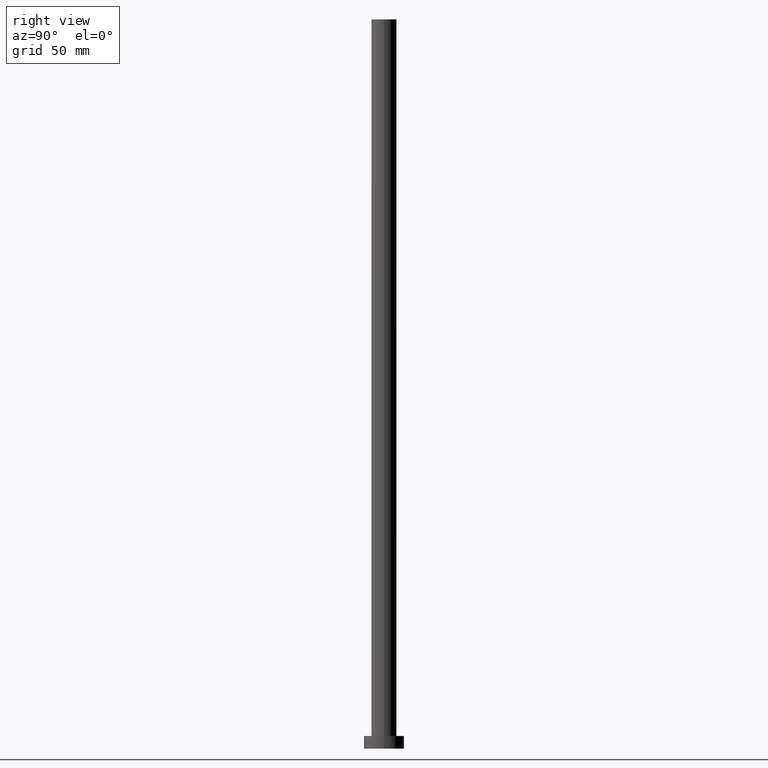
[diagram: clean part render]
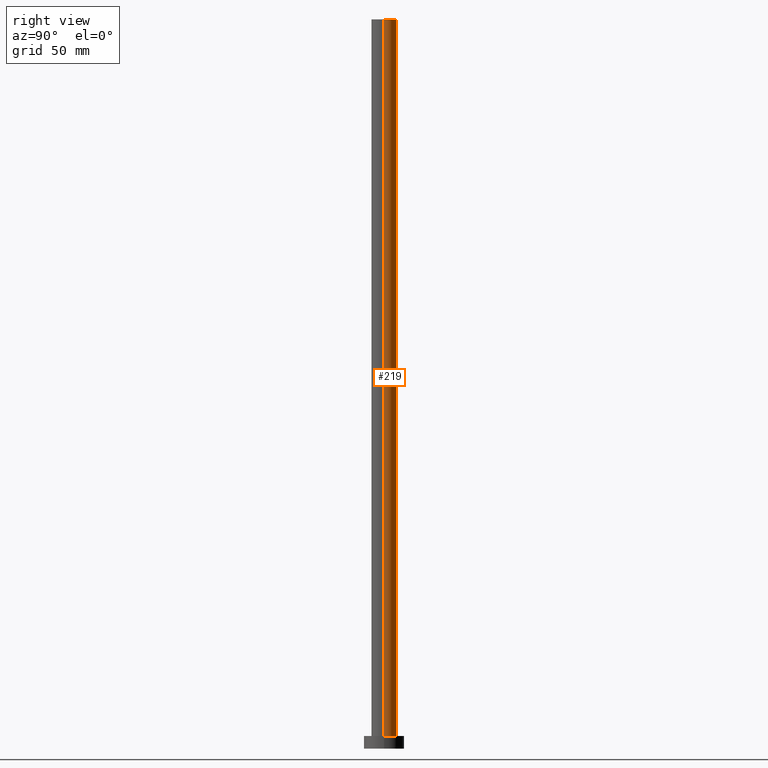
[diagram: same view with one face highlighted and labeled with its STEP entity id]
A machine part, right view. The second image highlights one B-rep face of the part: STEP entity #219.
In plain terms, the highlighted cylindrical surface (edge-blend (fillet) strip) has radius 5 mm, axis along (-0, -0, -1).
Its self-contained STEP definition (entity closure, byte-faithful):
#12 = LINE ( 'NONE', #169, #15 ) ;
#15 = VECTOR ( 'NONE', #29, 1000.000000000000000 ) ;
#22 = ORIENTED_EDGE ( 'NONE', *, *, #160, .T. ) ;
#24 = VERTEX_POINT ( 'NONE', #255 ) ;
#28 = LINE ( 'NONE', #152, #237 ) ;
#29 = DIRECTION ( 'NONE',  ( -0.000000000000000000, -0.000000000000000000, -1.000000000000000000 ) ) ;
#33 = EDGE_LOOP ( 'NONE', ( #123, #114, #22, #37 ) ) ;
#34 = CIRCLE ( 'NONE', #216, 5.000000000000000888 ) ;
#36 = AXIS2_PLACEMENT_3D ( 'NONE', #57, #153, #178 ) ;
#37 = ORIENTED_EDGE ( 'NONE', *, *, #118, .F. ) ;
#49 = DIRECTION ( 'NONE',  ( 0.000000000000000000, 0.000000000000000000, 1.000000000000000000 ) ) ;
#57 = CARTESIAN_POINT ( 'NONE',  ( 0.000000000000000000, 0.000000000000000000, 289.5000000000000000 ) ) ;
#63 = AXIS2_PLACEMENT_3D ( 'NONE', #74, #194, #80 ) ;
#68 = VERTEX_POINT ( 'NONE', #228 ) ;
#69 = DIRECTION ( 'NONE',  ( -0.000000000000000000, -0.000000000000000000, -1.000000000000000000 ) ) ;
#74 = CARTESIAN_POINT ( 'NONE',  ( 0.000000000000000000, 0.000000000000000000, 289.5000000000000000 ) ) ;
#77 = EDGE_CURVE ( 'NONE', #68, #196, #12, .T. ) ;
#80 = DIRECTION ( 'NONE',  ( -1.000000000000000000, 0.000000000000000000, 0.000000000000000000 ) ) ;
#114 = ORIENTED_EDGE ( 'NONE', *, *, #77, .T. ) ;
#118 = EDGE_CURVE ( 'NONE', #253, #24, #28, .T. ) ;
#123 = ORIENTED_EDGE ( 'NONE', *, *, #206, .F. ) ;
#129 = CARTESIAN_POINT ( 'NONE',  ( 0.000000000000000000, 0.000000000000000000, 5.000000000000000000 ) ) ;
#152 = CARTESIAN_POINT ( 'NONE',  ( -5.000000000000000888, 0.000000000000000000, 289.5000000000000000 ) ) ;
#153 = DIRECTION ( 'NONE',  ( 0.000000000000000000, 0.000000000000000000, 1.000000000000000000 ) ) ;
#160 = EDGE_CURVE ( 'NONE', #196, #24, #34, .T. ) ;
#169 = CARTESIAN_POINT ( 'NONE',  ( 5.000000000000000888, 6.123233995736767268E-16, 289.5000000000000000 ) ) ;
#173 = CIRCLE ( 'NONE', #36, 5.000000000000000888 ) ;
#174 = CARTESIAN_POINT ( 'NONE',  ( 5.000000000000000888, 6.123233995736767268E-16, 5.000000000000000000 ) ) ;
#178 = DIRECTION ( 'NONE',  ( 1.000000000000000000, 0.000000000000000000, 0.000000000000000000 ) ) ;
#194 = DIRECTION ( 'NONE',  ( -0.000000000000000000, -0.000000000000000000, -1.000000000000000000 ) ) ;
#196 = VERTEX_POINT ( 'NONE', #174 ) ;
#206 = EDGE_CURVE ( 'NONE', #68, #253, #173, .T. ) ;
#214 = FACE_OUTER_BOUND ( 'NONE', #33, .T. ) ;
#216 = AXIS2_PLACEMENT_3D ( 'NONE', #129, #49, #232 ) ;
#217 = CARTESIAN_POINT ( 'NONE',  ( -5.000000000000000888, 0.000000000000000000, 289.5000000000000000 ) ) ;
#219 = ADVANCED_FACE ( 'NONE', ( #214 ), #240, .T. ) ;
#228 = CARTESIAN_POINT ( 'NONE',  ( 5.000000000000000888, 6.123233995736767268E-16, 289.5000000000000000 ) ) ;
#232 = DIRECTION ( 'NONE',  ( 1.000000000000000000, 0.000000000000000000, 0.000000000000000000 ) ) ;
#237 = VECTOR ( 'NONE', #69, 1000.000000000000000 ) ;
#240 = CYLINDRICAL_SURFACE ( 'NONE', #63, 5.000000000000000888 ) ;
#253 = VERTEX_POINT ( 'NONE', #217 ) ;
#255 = CARTESIAN_POINT ( 'NONE',  ( -5.000000000000000888, 0.000000000000000000, 5.000000000000000000 ) ) ;